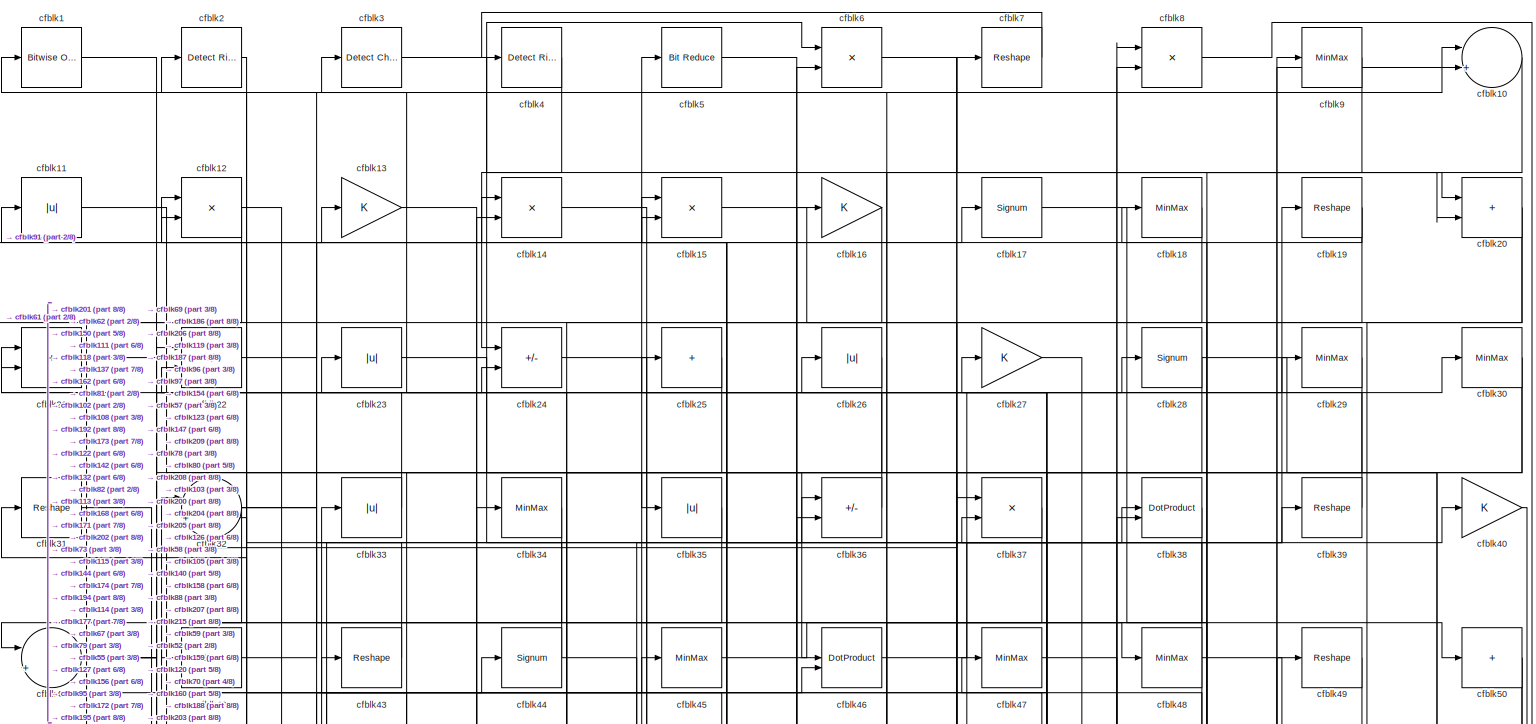
[diagram: root canvas - part 1/8, full width, top band]
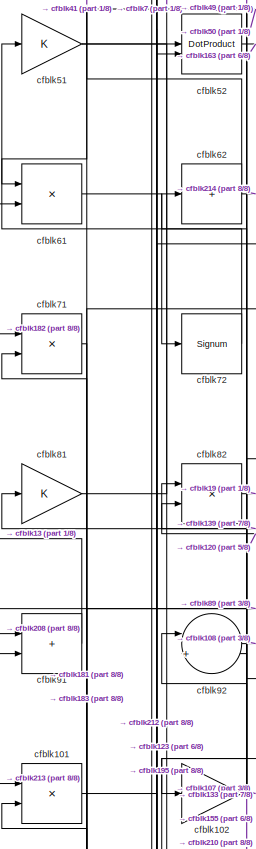
[diagram: root canvas - part 2/8, middle left region]
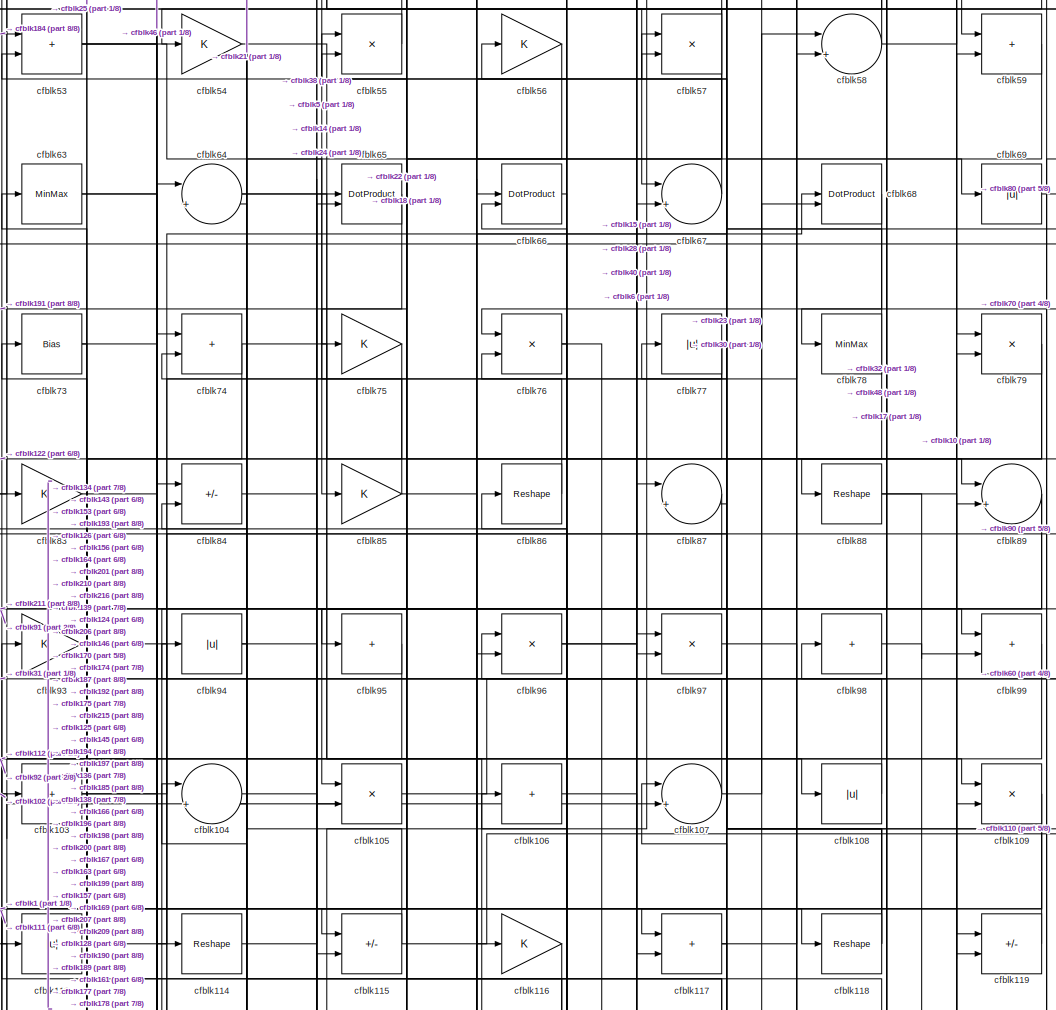
[diagram: root canvas - part 3/8, central region]
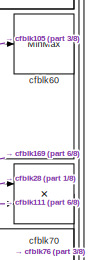
[diagram: root canvas - part 4/8, top right region]
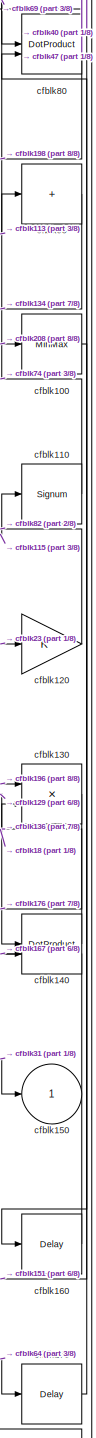
[diagram: root canvas - part 5/8, middle right region]
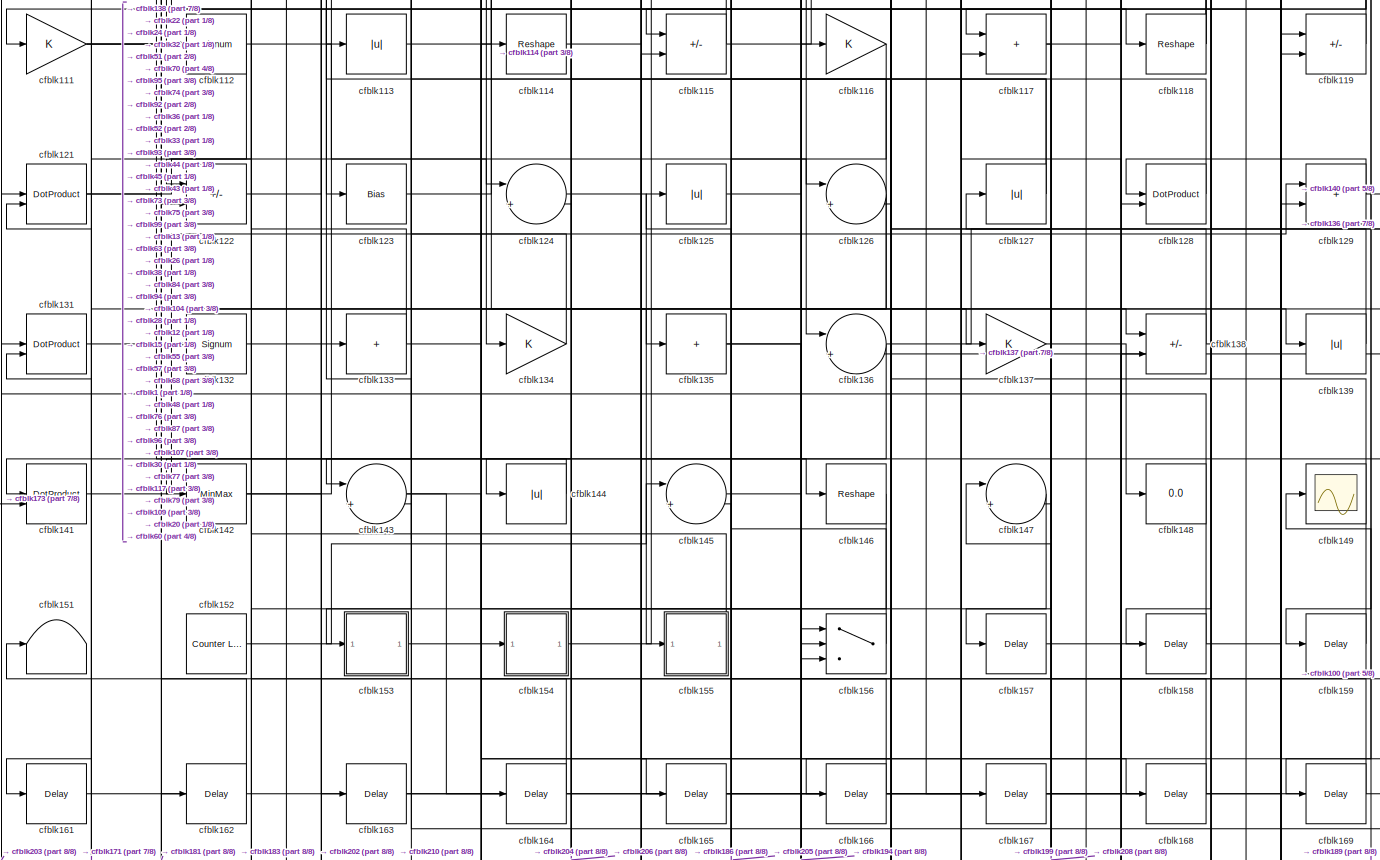
[diagram: root canvas - part 6/8, full width, middle band]
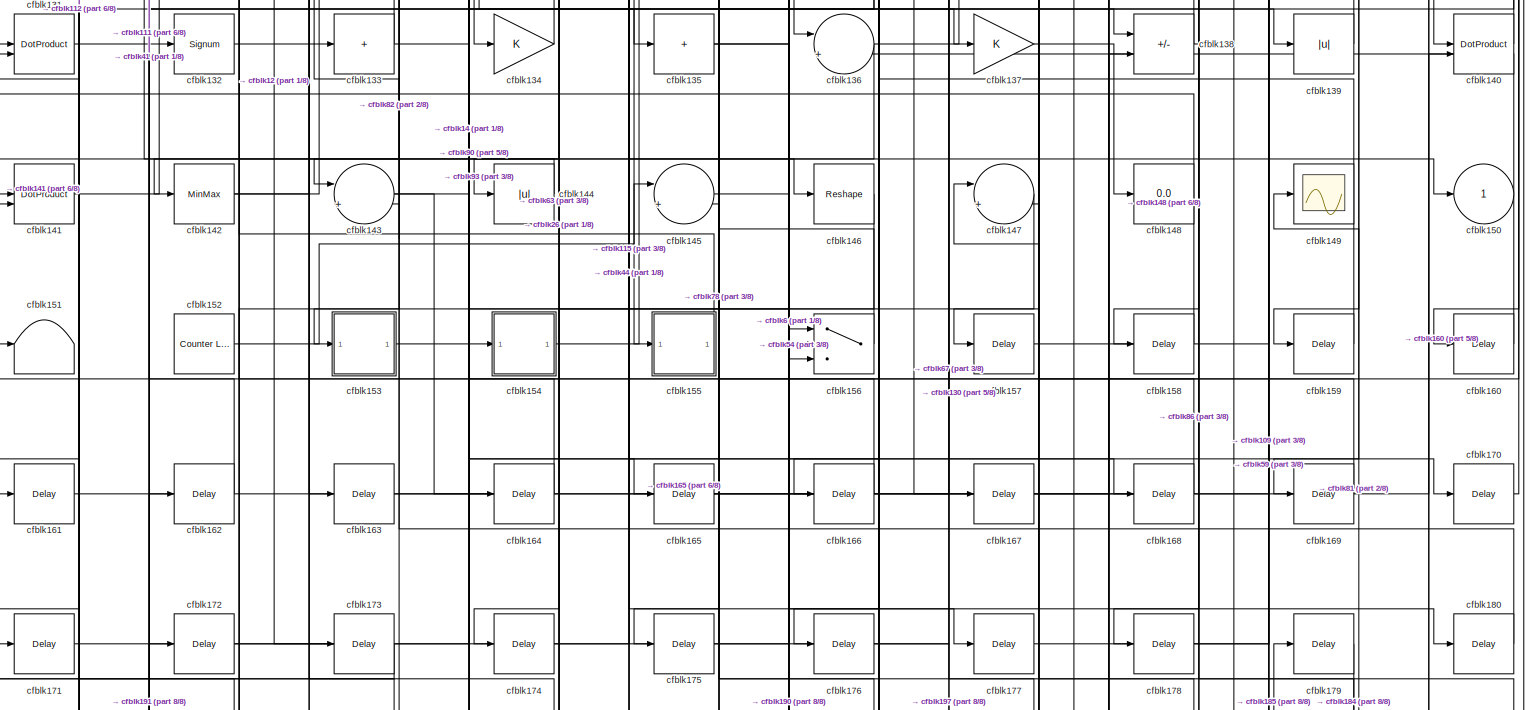
[diagram: root canvas - part 7/8, full width, bottom band]
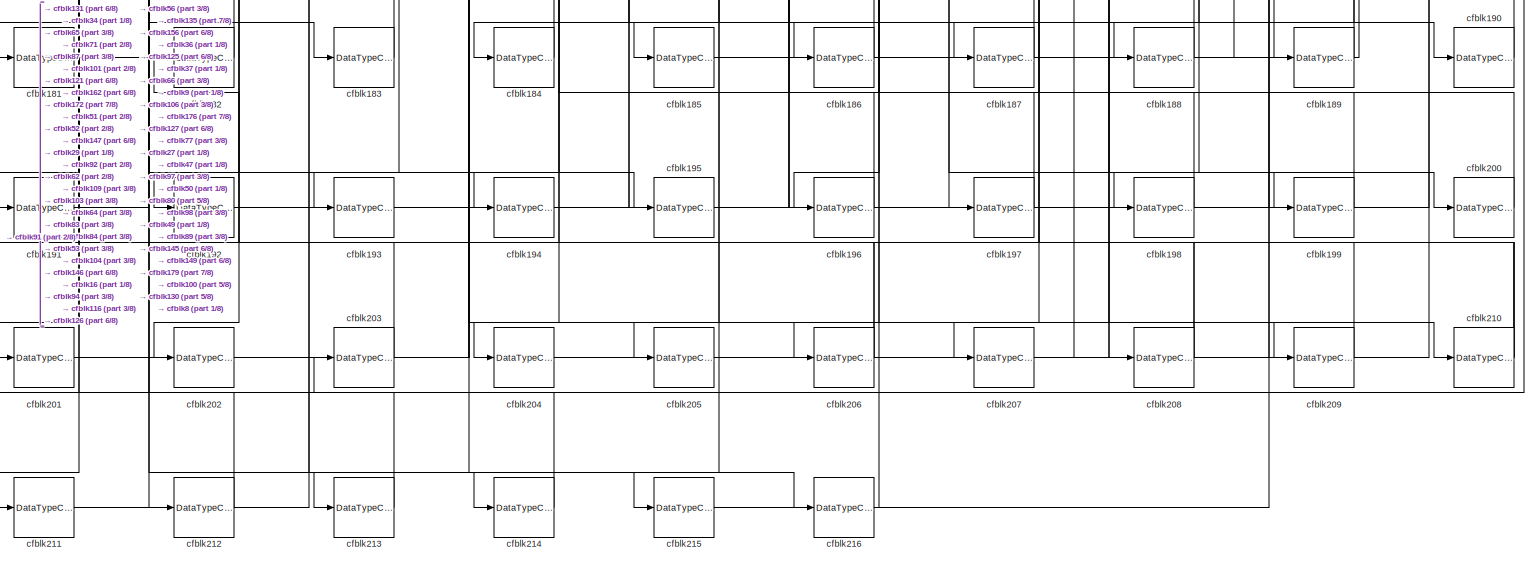
[diagram: root canvas - part 8/8, full width, bottom band]
MODEL slx_b3555a9f038b
KIND model
CONFIG AbsTol = auto
CONFIG EnableMultiTasking = off
CONFIG FixedStep = auto
CONFIG MaxStep = auto
CONFIG MinStep = auto
CONFIG RelTol = 1e-3
CONFIG SampleTimeConstraint = Unconstrained
CONFIG SolverName = VariableStepAuto
CONFIG StartTime = 0.0
CONFIG StopTime = 10.0
BLOCK [Reference] cfblk1  REF=simulink/Logic and Bit
Operations/Bitwise
Operator
  LibrarySourceBlock = hdlsllib/Logic and Bit\nOperations/Bitwise\nOperator
  SourceBlock = simulink/Logic and Bit\nOperations/Bitwise\nOperator
  SourceType = Bitwise Operator
BLOCK [Sum] cfblk10
  Inputs = |++
BLOCK [MinMax] cfblk100
BLOCK [Product] cfblk101
  Inputs = */
  RndMeth = Zero
  SaturateOnIntegerOverflow = on
BLOCK [Gain] cfblk102
BLOCK [Sum] cfblk103
  IconShape = rectangular
  Inputs = +
BLOCK [Sum] cfblk104
  Inputs = |++
BLOCK [Product] cfblk105
  Inputs = */
  RndMeth = Zero
  SaturateOnIntegerOverflow = on
BLOCK [Sum] cfblk106
  IconShape = rectangular
  Inputs = +
BLOCK [Sum] cfblk107
  Inputs = |++
BLOCK [Abs] cfblk108
  SaturateOnIntegerOverflow = off
BLOCK [Product] cfblk109
  Inputs = */
  RndMeth = Zero
  SaturateOnIntegerOverflow = on
BLOCK [Abs] cfblk11
  SaturateOnIntegerOverflow = off
BLOCK [Signum] cfblk110
BLOCK [Gain] cfblk111
BLOCK [Signum] cfblk112
BLOCK [Abs] cfblk113
  SaturateOnIntegerOverflow = off
BLOCK [Reshape] cfblk114
BLOCK [Sum] cfblk115
  IconShape = rectangular
  Inputs = +-
BLOCK [Gain] cfblk116
BLOCK [Sum] cfblk117
  IconShape = rectangular
BLOCK [Reshape] cfblk118
BLOCK [Sum] cfblk119
  IconShape = rectangular
  Inputs = +-
BLOCK [Product] cfblk12
  Inputs = */
  RndMeth = Zero
  SaturateOnIntegerOverflow = on
BLOCK [Gain] cfblk120
BLOCK [DotProduct] cfblk121
  OutDataTypeStr = Inherit: Inherit via internal rule
BLOCK [Sum] cfblk122
  IconShape = rectangular
  Inputs = +-
BLOCK [Bias] cfblk123
  Bias = 0.0
  SaturateOnIntegerOverflow = off
BLOCK [Sum] cfblk124
  Inputs = |++
BLOCK [Abs] cfblk125
  SaturateOnIntegerOverflow = off
BLOCK [Sum] cfblk126
  Inputs = |++
BLOCK [Abs] cfblk127
  SaturateOnIntegerOverflow = off
BLOCK [DotProduct] cfblk128
  OutDataTypeStr = Inherit: Inherit via internal rule
BLOCK [Sum] cfblk129
  IconShape = rectangular
BLOCK [Gain] cfblk13
BLOCK [Product] cfblk130
  Inputs = */
  RndMeth = Zero
  SaturateOnIntegerOverflow = on
BLOCK [DotProduct] cfblk131
  OutDataTypeStr = Inherit: Inherit via internal rule
BLOCK [Signum] cfblk132
BLOCK [Sum] cfblk133
  IconShape = rectangular
  Inputs = +
BLOCK [Gain] cfblk134
BLOCK [Sum] cfblk135
  IconShape = rectangular
  Inputs = +
BLOCK [Sum] cfblk136
  Inputs = |++
BLOCK [Gain] cfblk137
BLOCK [Sum] cfblk138
  IconShape = rectangular
  Inputs = +-
BLOCK [Abs] cfblk139
  SaturateOnIntegerOverflow = off
BLOCK [Product] cfblk14
  Inputs = */
  RndMeth = Zero
  SaturateOnIntegerOverflow = on
BLOCK [DotProduct] cfblk140
  OutDataTypeStr = Inherit: Inherit via internal rule
BLOCK [DotProduct] cfblk141
  OutDataTypeStr = Inherit: Inherit via internal rule
BLOCK [MinMax] cfblk142
BLOCK [Sum] cfblk143
  Inputs = |++
BLOCK [Abs] cfblk144
  SaturateOnIntegerOverflow = off
BLOCK [Sum] cfblk145
  Inputs = |++
BLOCK [Reshape] cfblk146
BLOCK [Sum] cfblk147
  Inputs = |++
BLOCK [Display] cfblk148
  Decimation = 1
BLOCK [Scope] cfblk149
  Floating = off
  NumInputPorts = 1
  ScopeSpecificationString = Simulink.scopes.TimeScopeBlockCfg('CurrentConfiguration', extmgr.ConfigurationSet(extmgr.Configuration('Core','General UI',true),extmgr.Configuration('Core','Source UI',true),extmgr.Configuration('Sources','WiredSimulink',true,'DataLoggingVariableName','ScopeData2','DataLoggingSaveFormat','Array','DataLoggingLimitDataPoints',true,'DataLoggingDecimation','1'),extmgr.Configuration('Visuals','Time Do...<+868ch>
BLOCK [Product] cfblk15
  Inputs = */
  RndMeth = Zero
  SaturateOnIntegerOverflow = on
BLOCK [Outport] cfblk150
  VectorParamsAs1DForOutWhenUnconnected = off
BLOCK [Terminator] cfblk151
BLOCK [Reference] cfblk152  REF=hdlsllib/Sources/Counter
Limited
  SourceBlock = hdlsllib/Sources/Counter\nLimited
  SourceType = Counter Limited
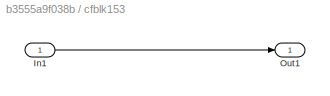
BLOCK [SubSystem] cfblk153
  LibrarySourceBlock = hdlsllib/Ports &\nSubsystems/Subsystem
BLOCK [Inport] cfblk153/In1
BLOCK [Outport] cfblk153/Out1
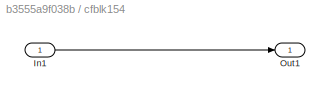
BLOCK [SubSystem] cfblk154
  LibrarySourceBlock = hdlsllib/Ports &\nSubsystems/Subsystem
BLOCK [Inport] cfblk154/In1
BLOCK [Outport] cfblk154/Out1
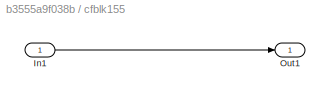
BLOCK [SubSystem] cfblk155
  LibrarySourceBlock = hdlsllib/Ports &\nSubsystems/Subsystem
BLOCK [Inport] cfblk155/In1
BLOCK [Outport] cfblk155/Out1
BLOCK [Switch] cfblk156
  InputSameDT = off
  SaturateOnIntegerOverflow = off
BLOCK [Delay] cfblk157
  InputPortMap = u0
  SampleTime = 1
BLOCK [Delay] cfblk158
  InputPortMap = u0
  SampleTime = 1
BLOCK [Delay] cfblk159
  InputPortMap = u0
  SampleTime = 1
BLOCK [Gain] cfblk16
BLOCK [Delay] cfblk160
  InputPortMap = u0
  SampleTime = 1
BLOCK [Delay] cfblk161
  InputPortMap = u0
  SampleTime = 1
BLOCK [Delay] cfblk162
  InputPortMap = u0
  SampleTime = 1
BLOCK [Delay] cfblk163
  InputPortMap = u0
  SampleTime = 1
BLOCK [Delay] cfblk164
  InputPortMap = u0
  SampleTime = 1
BLOCK [Delay] cfblk165
  InputPortMap = u0
  SampleTime = 1
BLOCK [Delay] cfblk166
  InputPortMap = u0
  SampleTime = 1
BLOCK [Delay] cfblk167
  InputPortMap = u0
  SampleTime = 1
BLOCK [Delay] cfblk168
  InputPortMap = u0
  SampleTime = 1
BLOCK [Delay] cfblk169
  InputPortMap = u0
  SampleTime = 1
BLOCK [Signum] cfblk17
BLOCK [Delay] cfblk170
  InputPortMap = u0
  SampleTime = 1
BLOCK [Delay] cfblk171
  InputPortMap = u0
  SampleTime = 1
BLOCK [Delay] cfblk172
  InputPortMap = u0
  SampleTime = 1
BLOCK [Delay] cfblk173
  InputPortMap = u0
  SampleTime = 1
BLOCK [Delay] cfblk174
  InputPortMap = u0
  SampleTime = 1
BLOCK [Delay] cfblk175
  InputPortMap = u0
  SampleTime = 1
BLOCK [Delay] cfblk176
  InputPortMap = u0
  SampleTime = 1
BLOCK [Delay] cfblk177
  InputPortMap = u0
  SampleTime = 1
BLOCK [Delay] cfblk178
  InputPortMap = u0
  SampleTime = 1
BLOCK [Delay] cfblk179
  InputPortMap = u0
  SampleTime = 1
BLOCK [MinMax] cfblk18
BLOCK [Delay] cfblk180
  InputPortMap = u0
  SampleTime = 1
BLOCK [DataTypeConversion] cfblk181
  RndMeth = Floor
  SaturateOnIntegerOverflow = off
BLOCK [DataTypeConversion] cfblk182
  OutDataTypeStr = uint8
  RndMeth = Floor
  SaturateOnIntegerOverflow = off
BLOCK [DataTypeConversion] cfblk183
  OutDataTypeStr = uint8
  RndMeth = Floor
  SaturateOnIntegerOverflow = off
BLOCK [DataTypeConversion] cfblk184
  OutDataTypeStr = uint8
  RndMeth = Floor
  SaturateOnIntegerOverflow = off
BLOCK [DataTypeConversion] cfblk185
  OutDataTypeStr = uint8
  RndMeth = Floor
  SaturateOnIntegerOverflow = off
BLOCK [DataTypeConversion] cfblk186
  OutDataTypeStr = uint8
  RndMeth = Floor
  SaturateOnIntegerOverflow = off
BLOCK [DataTypeConversion] cfblk187
  OutDataTypeStr = uint8
  RndMeth = Floor
  SaturateOnIntegerOverflow = off
BLOCK [DataTypeConversion] cfblk188
  OutDataTypeStr = uint8
  RndMeth = Floor
  SaturateOnIntegerOverflow = off
BLOCK [DataTypeConversion] cfblk189
  RndMeth = Floor
  SaturateOnIntegerOverflow = off
BLOCK [Reshape] cfblk19
BLOCK [DataTypeConversion] cfblk190
  OutDataTypeStr = uint8
  RndMeth = Floor
  SaturateOnIntegerOverflow = off
BLOCK [DataTypeConversion] cfblk191
  OutDataTypeStr = uint8
  RndMeth = Floor
  SaturateOnIntegerOverflow = off
BLOCK [DataTypeConversion] cfblk192
  OutDataTypeStr = uint8
  RndMeth = Floor
  SaturateOnIntegerOverflow = off
BLOCK [DataTypeConversion] cfblk193
  OutDataTypeStr = uint8
  RndMeth = Floor
  SaturateOnIntegerOverflow = off
BLOCK [DataTypeConversion] cfblk194
  RndMeth = Floor
  SaturateOnIntegerOverflow = off
BLOCK [DataTypeConversion] cfblk195
  OutDataTypeStr = uint8
  RndMeth = Floor
  SaturateOnIntegerOverflow = off
BLOCK [DataTypeConversion] cfblk196
  RndMeth = Floor
  SaturateOnIntegerOverflow = off
BLOCK [DataTypeConversion] cfblk197
  OutDataTypeStr = uint8
  RndMeth = Floor
  SaturateOnIntegerOverflow = off
BLOCK [DataTypeConversion] cfblk198
  OutDataTypeStr = uint8
  RndMeth = Floor
  SaturateOnIntegerOverflow = off
BLOCK [DataTypeConversion] cfblk199
  OutDataTypeStr = uint8
  RndMeth = Floor
  SaturateOnIntegerOverflow = off
BLOCK [Reference] cfblk2  REF=hdlsllib/Logic and Bit
Operations/Detect Rise
Positive
  SourceBlock = hdlsllib/Logic and Bit\nOperations/Detect Rise\nPositive
  SourceType = Detect Rise Positive
BLOCK [Sum] cfblk20
  IconShape = rectangular
BLOCK [DataTypeConversion] cfblk200
  OutDataTypeStr = uint8
  RndMeth = Floor
  SaturateOnIntegerOverflow = off
BLOCK [DataTypeConversion] cfblk201
  RndMeth = Floor
  SaturateOnIntegerOverflow = off
BLOCK [DataTypeConversion] cfblk202
  OutDataTypeStr = uint8
  RndMeth = Floor
  SaturateOnIntegerOverflow = off
BLOCK [DataTypeConversion] cfblk203
  OutDataTypeStr = uint8
  RndMeth = Floor
  SaturateOnIntegerOverflow = off
BLOCK [DataTypeConversion] cfblk204
  OutDataTypeStr = uint8
  RndMeth = Floor
  SaturateOnIntegerOverflow = off
BLOCK [DataTypeConversion] cfblk205
  OutDataTypeStr = uint8
  RndMeth = Floor
  SaturateOnIntegerOverflow = off
BLOCK [DataTypeConversion] cfblk206
  RndMeth = Floor
  SaturateOnIntegerOverflow = off
BLOCK [DataTypeConversion] cfblk207
  OutDataTypeStr = uint8
  RndMeth = Floor
  SaturateOnIntegerOverflow = off
BLOCK [DataTypeConversion] cfblk208
  RndMeth = Floor
  SaturateOnIntegerOverflow = off
BLOCK [DataTypeConversion] cfblk209
  OutDataTypeStr = uint8
  RndMeth = Floor
  SaturateOnIntegerOverflow = off
BLOCK [Sum] cfblk21
  IconShape = rectangular
BLOCK [DataTypeConversion] cfblk210
  RndMeth = Floor
  SaturateOnIntegerOverflow = off
BLOCK [DataTypeConversion] cfblk211
  OutDataTypeStr = uint8
  RndMeth = Floor
  SaturateOnIntegerOverflow = off
BLOCK [DataTypeConversion] cfblk212
  OutDataTypeStr = uint8
  RndMeth = Floor
  SaturateOnIntegerOverflow = off
BLOCK [DataTypeConversion] cfblk213
  OutDataTypeStr = uint8
  RndMeth = Floor
  SaturateOnIntegerOverflow = off
BLOCK [DataTypeConversion] cfblk214
  OutDataTypeStr = uint8
  RndMeth = Floor
  SaturateOnIntegerOverflow = off
BLOCK [DataTypeConversion] cfblk215
  OutDataTypeStr = uint8
  RndMeth = Floor
  SaturateOnIntegerOverflow = off
BLOCK [DataTypeConversion] cfblk216
  OutDataTypeStr = uint8
  RndMeth = Floor
  SaturateOnIntegerOverflow = off
BLOCK [Sum] cfblk22
  IconShape = rectangular
  Inputs = +-
BLOCK [Abs] cfblk23
  SaturateOnIntegerOverflow = off
BLOCK [Sum] cfblk24
  IconShape = rectangular
  Inputs = +-
BLOCK [Sum] cfblk25
  IconShape = rectangular
  Inputs = +
BLOCK [Abs] cfblk26
  SaturateOnIntegerOverflow = off
BLOCK [Gain] cfblk27
BLOCK [Signum] cfblk28
BLOCK [MinMax] cfblk29
BLOCK [Reference] cfblk3  REF=simulink/Logic and Bit
Operations/Detect
Change
  LibrarySourceBlock = hdlsllib/Logic and Bit\nOperations/Detect\nChange
  SourceBlock = simulink/Logic and Bit\nOperations/Detect\nChange
  SourceType = Detect Change
BLOCK [MinMax] cfblk30
BLOCK [Reshape] cfblk31
BLOCK [Sum] cfblk32
  Inputs = |++
BLOCK [Abs] cfblk33
  SaturateOnIntegerOverflow = off
BLOCK [MinMax] cfblk34
BLOCK [Abs] cfblk35
  SaturateOnIntegerOverflow = off
BLOCK [Sum] cfblk36
  IconShape = rectangular
  Inputs = +-
BLOCK [Product] cfblk37
  Inputs = */
  RndMeth = Zero
  SaturateOnIntegerOverflow = on
BLOCK [DotProduct] cfblk38
  OutDataTypeStr = Inherit: Inherit via internal rule
BLOCK [Reshape] cfblk39
BLOCK [Reference] cfblk4  REF=hdlsllib/Logic and Bit
Operations/Detect Rise
Nonnegative
  SourceBlock = hdlsllib/Logic and Bit\nOperations/Detect Rise\nNonnegative
  SourceType = Detect Rise Nonnegative
BLOCK [Gain] cfblk40
BLOCK [Sum] cfblk41
  Inputs = |++
BLOCK [Bias] cfblk42
  Bias = 0.0
  SaturateOnIntegerOverflow = off
BLOCK [Reshape] cfblk43
BLOCK [Signum] cfblk44
BLOCK [MinMax] cfblk45
BLOCK [DotProduct] cfblk46
  OutDataTypeStr = Inherit: Inherit via internal rule
BLOCK [MinMax] cfblk47
BLOCK [MinMax] cfblk48
BLOCK [Reshape] cfblk49
BLOCK [Reference] cfblk5  REF=hdlsllib/Logic and Bit
Operations/Bit Reduce
  SourceBlock = hdlsllib/Logic and Bit\nOperations/Bit Reduce
  SourceType = Bit Reduce
BLOCK [Sum] cfblk50
  IconShape = rectangular
  Inputs = +
BLOCK [Gain] cfblk51
BLOCK [DotProduct] cfblk52
  OutDataTypeStr = Inherit: Inherit via internal rule
BLOCK [Sum] cfblk53
  IconShape = rectangular
BLOCK [Gain] cfblk54
BLOCK [Product] cfblk55
  Inputs = */
  RndMeth = Zero
  SaturateOnIntegerOverflow = on
BLOCK [Gain] cfblk56
BLOCK [Product] cfblk57
  Inputs = */
  RndMeth = Zero
  SaturateOnIntegerOverflow = on
BLOCK [Sum] cfblk58
  Inputs = |++
BLOCK [Sum] cfblk59
  IconShape = rectangular
BLOCK [Product] cfblk6
  Inputs = */
  RndMeth = Zero
  SaturateOnIntegerOverflow = on
BLOCK [MinMax] cfblk60
BLOCK [Product] cfblk61
  Inputs = */
  RndMeth = Zero
  SaturateOnIntegerOverflow = on
BLOCK [Sum] cfblk62
  IconShape = rectangular
  Inputs = +
BLOCK [MinMax] cfblk63
BLOCK [Sum] cfblk64
  Inputs = |++
BLOCK [DotProduct] cfblk65
  OutDataTypeStr = Inherit: Inherit via internal rule
BLOCK [DotProduct] cfblk66
  OutDataTypeStr = Inherit: Inherit via internal rule
BLOCK [Sum] cfblk67
  Inputs = |++
BLOCK [DotProduct] cfblk68
  OutDataTypeStr = Inherit: Inherit via internal rule
BLOCK [Abs] cfblk69
  SaturateOnIntegerOverflow = off
BLOCK [Reshape] cfblk7
BLOCK [Product] cfblk70
  Inputs = */
  RndMeth = Zero
  SaturateOnIntegerOverflow = on
BLOCK [Product] cfblk71
  Inputs = */
  RndMeth = Zero
  SaturateOnIntegerOverflow = on
BLOCK [Signum] cfblk72
BLOCK [Bias] cfblk73
  Bias = 0.0
  SaturateOnIntegerOverflow = off
BLOCK [Sum] cfblk74
  IconShape = rectangular
BLOCK [Gain] cfblk75
BLOCK [Product] cfblk76
  Inputs = */
  RndMeth = Zero
  SaturateOnIntegerOverflow = on
BLOCK [Abs] cfblk77
  SaturateOnIntegerOverflow = off
BLOCK [MinMax] cfblk78
BLOCK [Product] cfblk79
  Inputs = */
  RndMeth = Zero
  SaturateOnIntegerOverflow = on
BLOCK [Product] cfblk8
  Inputs = */
  RndMeth = Zero
  SaturateOnIntegerOverflow = on
BLOCK [DotProduct] cfblk80
  OutDataTypeStr = Inherit: Inherit via internal rule
BLOCK [Gain] cfblk81
BLOCK [Product] cfblk82
  Inputs = */
  RndMeth = Zero
  SaturateOnIntegerOverflow = on
BLOCK [Gain] cfblk83
BLOCK [Sum] cfblk84
  IconShape = rectangular
  Inputs = +-
BLOCK [Gain] cfblk85
BLOCK [Reshape] cfblk86
BLOCK [Sum] cfblk87
  Inputs = |++
BLOCK [Reshape] cfblk88
BLOCK [Sum] cfblk89
  Inputs = |++
BLOCK [MinMax] cfblk9
BLOCK [Sum] cfblk90
  IconShape = rectangular
  Inputs = +
BLOCK [Sum] cfblk91
  IconShape = rectangular
BLOCK [Sum] cfblk92
  Inputs = |++
BLOCK [Gain] cfblk93
BLOCK [Abs] cfblk94
  SaturateOnIntegerOverflow = off
BLOCK [Sum] cfblk95
  IconShape = rectangular
  Inputs = +
BLOCK [Product] cfblk96
  Inputs = */
  RndMeth = Zero
  SaturateOnIntegerOverflow = on
BLOCK [Product] cfblk97
  Inputs = */
  RndMeth = Zero
  SaturateOnIntegerOverflow = on
BLOCK [Sum] cfblk98
  IconShape = rectangular
  Inputs = +
BLOCK [Sum] cfblk99
  IconShape = rectangular
LINE cfblk100:1 -> cfblk151:1
LINE cfblk101:1 -> cfblk212:1
NET cfblk102:1 -> cfblk107:2, cfblk62:1
NET cfblk103:1 -> cfblk216:1, cfblk38:2
LINE cfblk104:1 -> cfblk146:1
LINE cfblk105:1 -> cfblk60:1
LINE cfblk106:1 -> cfblk199:1
NET cfblk107:1 -> cfblk68:2, cfblk73:1
LINE cfblk108:1 -> cfblk31:1
NET cfblk109:1 -> cfblk111:1, cfblk193:1
LINE cfblk10:1 -> cfblk88:1
LINE cfblk110:1 -> cfblk74:2
NET cfblk111:1 -> cfblk138:1, cfblk24:2, cfblk70:2
NET cfblk112:1 -> cfblk154:1, cfblk171:1
LINE cfblk113:1 -> cfblk90:1
LINE cfblk114:1 -> cfblk38:1
NET cfblk115:1 -> cfblk110:1, cfblk21:2
LINE cfblk116:1 -> cfblk185:1
NET cfblk117:1 -> cfblk157:1, cfblk58:2
NET cfblk118:1 -> cfblk53:2, cfblk57:1, cfblk77:1
LINE cfblk119:1 -> cfblk96:1
LINE cfblk11:1 -> cfblk46:1
LINE cfblk120:1 -> cfblk82:1
NET cfblk121:1 -> cfblk124:1, cfblk183:1
LINE cfblk122:1 -> cfblk36:1
LINE cfblk123:1 -> cfblk26:1
LINE cfblk124:1 -> cfblk155:1
LINE cfblk125:1 -> cfblk68:1
NET cfblk126:1 -> cfblk161:1, cfblk205:1, cfblk84:2
NET cfblk127:1 -> cfblk15:1, cfblk43:1
LINE cfblk128:1 -> cfblk93:1
NET cfblk129:1 -> cfblk128:1, cfblk140:1
NET cfblk12:1 -> cfblk173:1, cfblk41:1
LINE cfblk130:1 -> cfblk176:1
LINE cfblk131:1 -> cfblk132:1
LINE cfblk132:1 -> cfblk33:1
NET cfblk133:1 -> cfblk135:1, cfblk82:2
LINE cfblk134:1 -> cfblk63:1
NET cfblk135:1 -> cfblk180:1, cfblk190:1
NET cfblk136:1 -> cfblk130:2, cfblk141:1
LINE cfblk137:1 -> cfblk148:1
NET cfblk138:1 -> cfblk178:1, cfblk86:1
LINE cfblk139:1 -> cfblk81:1
LINE cfblk13:1 -> cfblk168:1
LINE cfblk140:1 -> cfblk18:1
LINE cfblk141:1 -> cfblk129:1
NET cfblk142:1 -> cfblk44:1, cfblk45:1
NET cfblk143:1 -> cfblk164:1, cfblk165:1
LINE cfblk144:1 -> cfblk142:1
LINE cfblk145:1 -> cfblk57:2
LINE cfblk146:1 -> cfblk204:1
LINE cfblk147:1 -> cfblk202:1
LINE cfblk14:1 -> cfblk79:1
LINE cfblk152:1 -> cfblk145:1
LINE cfblk153/In1:1 -> cfblk153/Out1:1
LINE cfblk153:1 -> cfblk114:1
LINE cfblk154/In1:1 -> cfblk154/Out1:1
LINE cfblk154:1 -> cfblk28:1
LINE cfblk155/In1:1 -> cfblk155/Out1:1
LINE cfblk155:1 -> cfblk92:1
LINE cfblk156:1 -> cfblk12:1
LINE cfblk157:1 -> cfblk129:2
LINE cfblk158:1 -> cfblk131:1
LINE cfblk159:1 -> cfblk1:1
LINE cfblk15:1 -> cfblk97:1
LINE cfblk160:1 -> cfblk136:2
LINE cfblk161:1 -> cfblk79:2
LINE cfblk162:1 -> cfblk22:1
LINE cfblk163:1 -> cfblk87:1
LINE cfblk164:1 -> cfblk74:1
LINE cfblk165:1 -> cfblk138:2
LINE cfblk166:1 -> cfblk55:2
LINE cfblk167:1 -> cfblk140:2
LINE cfblk168:1 -> cfblk32:2
LINE cfblk169:1 -> cfblk107:1
LINE cfblk16:1 -> cfblk194:1
LINE cfblk170:1 -> cfblk80:2
LINE cfblk171:1 -> cfblk14:2
LINE cfblk172:1 -> cfblk6:2
LINE cfblk173:1 -> cfblk141:2
LINE cfblk174:1 -> cfblk115:2
LINE cfblk175:1 -> cfblk67:2
LINE cfblk176:1 -> cfblk197:1
LINE cfblk177:1 -> cfblk59:2
LINE cfblk178:1 -> cfblk109:2
LINE cfblk179:1 -> cfblk184:1
LINE cfblk17:1 -> cfblk105:1
LINE cfblk180:1 -> cfblk133:1
NET cfblk181:1 -> cfblk162:1, cfblk213:1
LINE cfblk182:1 -> cfblk71:1
LINE cfblk183:1 -> cfblk71:2
LINE cfblk184:1 -> cfblk53:1
LINE cfblk185:1 -> cfblk179:1
LINE cfblk186:1 -> cfblk125:1
LINE cfblk187:1 -> cfblk37:1
LINE cfblk188:1 -> cfblk37:2
NET cfblk189:1 -> cfblk145:2, cfblk149:1
LINE cfblk18:1 -> cfblk115:1
LINE cfblk190:1 -> cfblk98:1
LINE cfblk191:1 -> cfblk172:1
LINE cfblk192:1 -> cfblk65:1
LINE cfblk193:1 -> cfblk65:2
NET cfblk194:1 -> cfblk156:1, cfblk36:2, cfblk89:2
LINE cfblk195:1 -> cfblk16:1
NET cfblk196:1 -> cfblk130:1, cfblk94:1
LINE cfblk197:1 -> cfblk66:1
LINE cfblk198:1 -> cfblk66:2
LINE cfblk199:1 -> cfblk127:1
NET cfblk19:1 -> cfblk12:2, cfblk61:2
LINE cfblk1:1 -> cfblk118:1
LINE cfblk200:1 -> cfblk106:1
NET cfblk201:1 -> cfblk64:1, cfblk84:1
LINE cfblk202:1 -> cfblk34:1
LINE cfblk203:1 -> cfblk121:1
LINE cfblk204:1 -> cfblk8:1
LINE cfblk205:1 -> cfblk8:2
NET cfblk206:1 -> cfblk104:1, cfblk121:2
LINE cfblk207:1 -> cfblk9:1
NET cfblk208:1 -> cfblk100:1, cfblk147:1, cfblk91:1
LINE cfblk209:1 -> cfblk27:1
NET cfblk20:1 -> cfblk158:1, cfblk159:1
NET cfblk210:1 -> cfblk131:2, cfblk182:1, cfblk92:2
LINE cfblk211:1 -> cfblk83:1
LINE cfblk212:1 -> cfblk52:1
LINE cfblk213:1 -> cfblk101:1
LINE cfblk214:1 -> cfblk101:2
LINE cfblk215:1 -> cfblk49:1
LINE cfblk216:1 -> cfblk56:1
LINE cfblk21:1 -> cfblk35:1
LINE cfblk22:1 -> cfblk14:1
LINE cfblk23:1 -> cfblk120:1
LINE cfblk24:1 -> cfblk67:1
LINE cfblk25:1 -> cfblk113:1
LINE cfblk26:1 -> cfblk174:1
LINE cfblk27:1 -> cfblk208:1
NET cfblk28:1 -> cfblk70:1, cfblk97:2
LINE cfblk29:1 -> cfblk192:1
LINE cfblk2:1 -> cfblk102:1
NET cfblk30:1 -> cfblk147:2, cfblk95:1
LINE cfblk31:1 -> cfblk150:1
NET cfblk32:1 -> cfblk122:2, cfblk17:1, cfblk48:1
LINE cfblk33:1 -> cfblk2:1
LINE cfblk34:1 -> cfblk201:1
LINE cfblk35:1 -> cfblk42:1
LINE cfblk36:1 -> cfblk3:1
LINE cfblk37:1 -> cfblk186:1
LINE cfblk38:1 -> cfblk144:1
LINE cfblk39:1 -> cfblk25:1
LINE cfblk3:1 -> cfblk20:1
LINE cfblk40:1 -> cfblk160:1
NET cfblk41:1 -> cfblk137:1, cfblk29:1, cfblk30:1
LINE cfblk42:1 -> cfblk10:1
LINE cfblk43:1 -> cfblk11:1
NET cfblk44:1 -> cfblk177:1, cfblk6:1
LINE cfblk45:1 -> cfblk50:1
LINE cfblk46:1 -> cfblk39:1
LINE cfblk47:1 -> cfblk200:1
NET cfblk48:1 -> cfblk126:2, cfblk15:2, cfblk59:1
LINE cfblk49:1 -> cfblk52:2
LINE cfblk4:1 -> cfblk24:1
NET cfblk50:1 -> cfblk188:1, cfblk61:1
NET cfblk51:1 -> cfblk123:1, cfblk195:1
LINE cfblk52:1 -> cfblk163:1
NET cfblk53:1 -> cfblk117:2, cfblk85:1, cfblk96:2
LINE cfblk54:1 -> cfblk136:1
LINE cfblk55:1 -> cfblk22:2
LINE cfblk56:1 -> cfblk215:1
NET cfblk57:1 -> cfblk104:2, cfblk21:1, cfblk54:1, cfblk75:1
NET cfblk58:1 -> cfblk10:2, cfblk32:1
LINE cfblk59:1 -> cfblk87:2
LINE cfblk5:1 -> cfblk69:1
LINE cfblk60:1 -> cfblk169:1
LINE cfblk61:1 -> cfblk72:1
NET cfblk62:1 -> cfblk214:1, cfblk41:2
NET cfblk63:1 -> cfblk126:1, cfblk156:2
NET cfblk64:1 -> cfblk170:1, cfblk89:1
LINE cfblk65:1 -> cfblk191:1
LINE cfblk66:1 -> cfblk196:1
LINE cfblk67:1 -> cfblk5:1
LINE cfblk68:1 -> cfblk78:1
LINE cfblk69:1 -> cfblk80:1
NET cfblk6:1 -> cfblk119:2, cfblk20:2
LINE cfblk70:1 -> cfblk76:1
LINE cfblk71:1 -> cfblk181:1
LINE cfblk72:1 -> cfblk51:1
NET cfblk73:1 -> cfblk153:1, cfblk46:2
NET cfblk74:1 -> cfblk109:1, cfblk122:1
LINE cfblk75:1 -> cfblk143:1
NET cfblk76:1 -> cfblk166:1, cfblk167:1
NET cfblk77:1 -> cfblk156:3, cfblk207:1, cfblk58:1, cfblk76:2
NET cfblk78:1 -> cfblk175:1, cfblk23:1
NET cfblk79:1 -> cfblk103:1, cfblk117:1
LINE cfblk7:1 -> cfblk4:1
NET cfblk80:1 -> cfblk198:1, cfblk47:1
LINE cfblk81:1 -> cfblk7:1
LINE cfblk82:1 -> cfblk19:1
LINE cfblk83:1 -> cfblk210:1
LINE cfblk84:1 -> cfblk99:1
NET cfblk85:1 -> cfblk116:1, cfblk64:2
LINE cfblk86:1 -> cfblk55:1
LINE cfblk87:1 -> cfblk211:1
NET cfblk88:1 -> cfblk119:1, cfblk99:2
NET cfblk89:1 -> cfblk105:2, cfblk91:2
LINE cfblk8:1 -> cfblk203:1
LINE cfblk90:1 -> cfblk134:1
LINE cfblk91:1 -> cfblk13:1
LINE cfblk92:1 -> cfblk108:1
LINE cfblk93:1 -> cfblk139:1
NET cfblk94:1 -> cfblk124:2, cfblk187:1
LINE cfblk95:1 -> cfblk112:1
NET cfblk96:1 -> cfblk128:2, cfblk40:1
LINE cfblk97:1 -> cfblk209:1
LINE cfblk98:1 -> cfblk189:1
LINE cfblk99:1 -> cfblk143:2
LINE cfblk9:1 -> cfblk206:1
note: NET lines group one-source signal fan-out (src -> all destinations, sorted); 1:1 wires keep LINE
